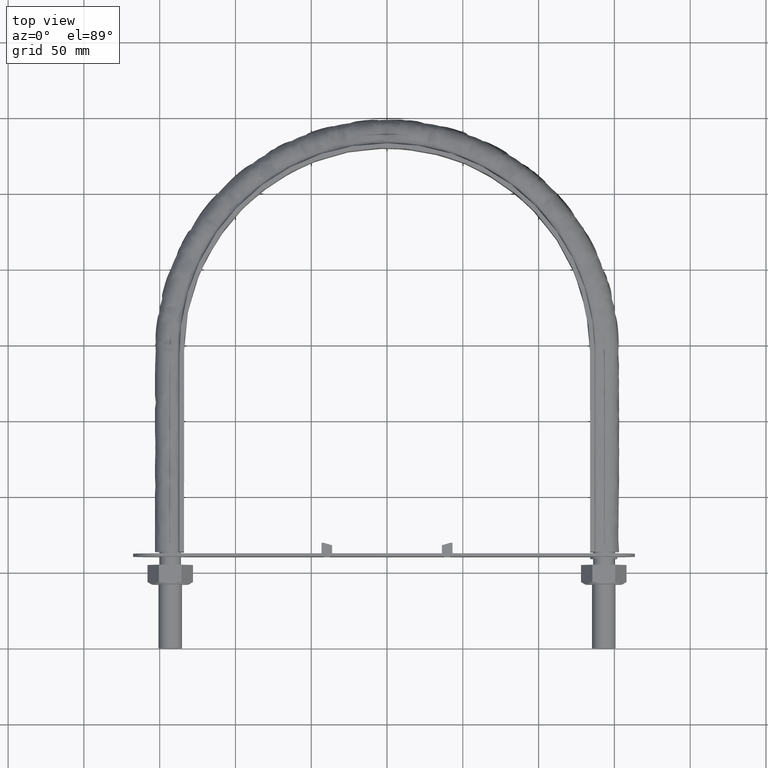
[diagram: clean part render]
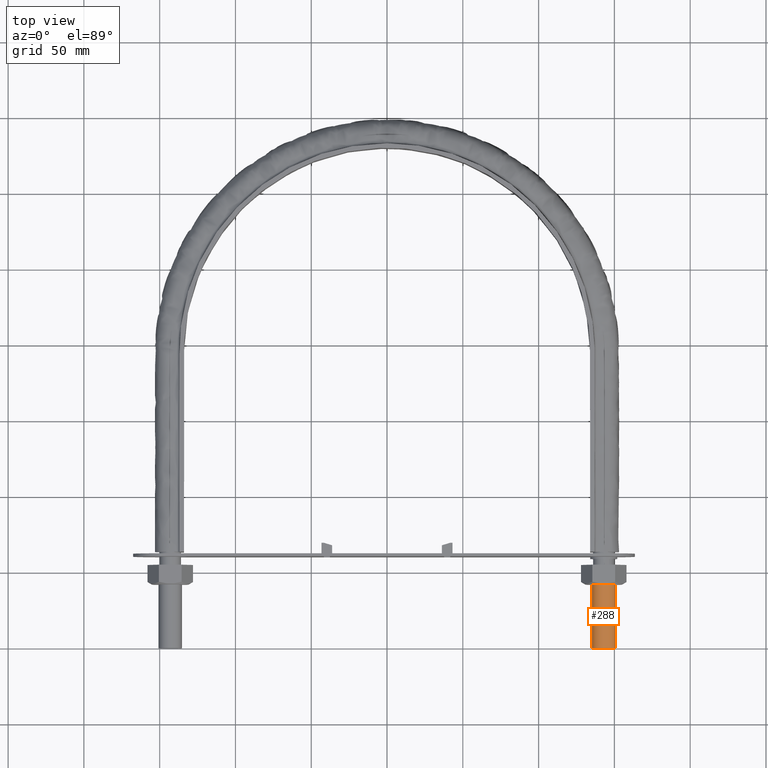
[diagram: same view with one face highlighted and labeled with its STEP entity id]
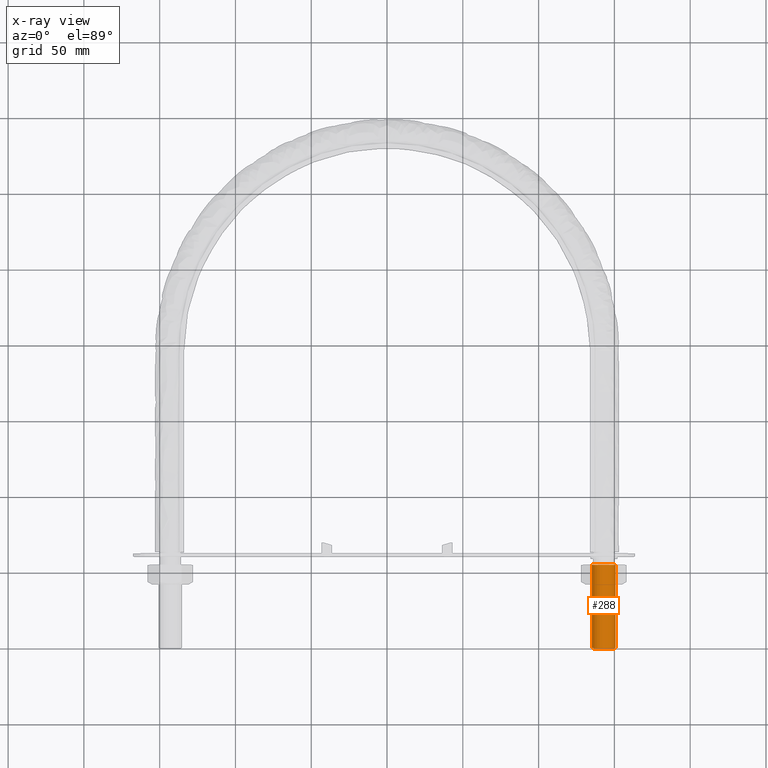
[diagram: x-ray of the same camera — body ghosted, the highlighted face saturated]
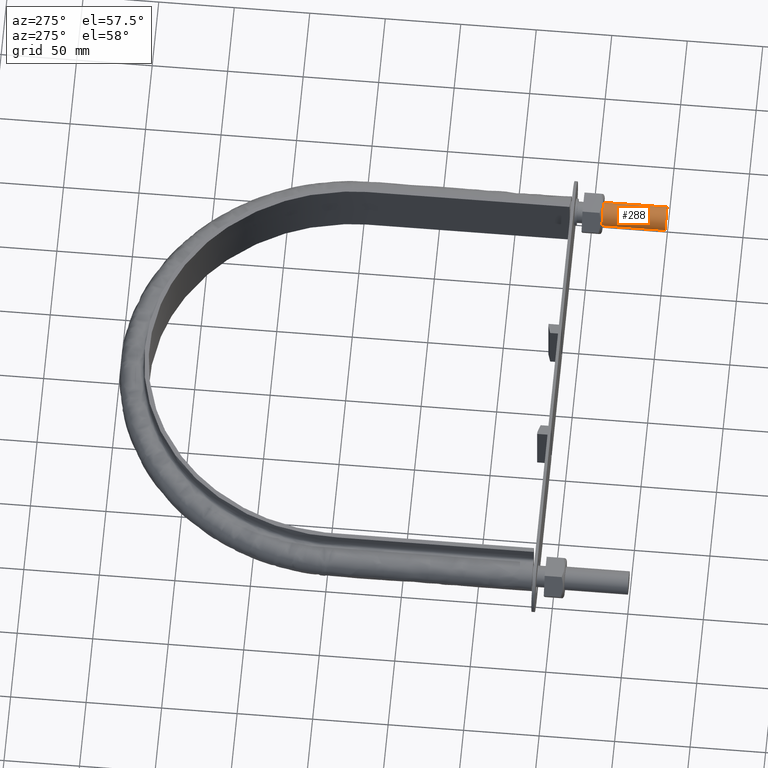
[diagram: same view with one face highlighted and labeled with its STEP entity id]
A machine part, top view. The second image highlights one B-rep face of the part: STEP entity #288.
The next image is the same camera in x-ray: the body ghosted, the highlighted face saturated — about 0% of this face is hidden behind the body in this view.
A second angle (auxiliary view) of the same face is appended — the face is thin or edge-on in the first view.
In plain terms, the highlighted cylindrical surface (bore or boss wall) has radius 7.75 mm, axis along (0, 1, -0).
Its self-contained STEP definition (entity closure, byte-faithful):
#288 = ADVANCED_FACE( '', ( #413, #414 ), #415, .T. );
#413 = FACE_OUTER_BOUND( '', #1554, .T. );
#414 = FACE_OUTER_BOUND( '', #1555, .T. );
#415 = CYLINDRICAL_SURFACE( '', #1556, 7.75000000000001 );
#1554 = EDGE_LOOP( '', ( #2069 ) );
#1555 = EDGE_LOOP( '', ( #2070 ) );
#1556 = AXIS2_PLACEMENT_3D( '', #2071, #2072, #2073 );
#2069 = ORIENTED_EDGE( '', *, *, #2641, .T. );
#2070 = ORIENTED_EDGE( '', *, *, #2638, .F. );
#2071 = CARTESIAN_POINT( '', ( 143.000000000000, 55.0000000000000, -1.68383373650577E-014 ) );
#2072 = DIRECTION( '', ( 2.44921270764475E-016, 1.00000000000000, -3.06151588455594E-016 ) );
#2073 = DIRECTION( '', ( 1.00000000000000, -2.44921270764476E-016, -5.47382212626882E-048 ) );
#2638 = EDGE_CURVE( '', #2862, #2862, #2863, .T. );
#2641 = EDGE_CURVE( '', #2868, #2868, #2869, .T. );
#2862 = VERTEX_POINT( '', #3676 );
#2863 = CIRCLE( '', #3677, 7.75000000000001 );
#2868 = VERTEX_POINT( '', #3682 );
#2869 = CIRCLE( '', #3683, 7.75000000000001 );
#3676 = CARTESIAN_POINT( '', ( 150.750000000000, -1.94100107080847E-014, 0.000000000000000 ) );
#3677 = AXIS2_PLACEMENT_3D( '', #4204, #4205, #4206 );
#3682 = CARTESIAN_POINT( '', ( 150.750000000000, 55.0000000000000, -1.68383373650577E-014 ) );
#3683 = AXIS2_PLACEMENT_3D( '', #4213, #4214, #4215 );
#4204 = CARTESIAN_POINT( '', ( 143.000000000000, -1.75118708596600E-014, -6.41805644305019E-046 ) );
#4205 = DIRECTION( '', ( -2.44921270764475E-016, -1.00000000000000, 3.06151588455594E-016 ) );
#4206 = DIRECTION( '', ( 1.00000000000000, -2.44921270764476E-016, 8.28136315232281E-047 ) );
#4213 = CARTESIAN_POINT( '', ( 143.000000000000, 55.0000000000000, -1.68383373650577E-014 ) );
#4214 = DIRECTION( '', ( -2.44921270764475E-016, -1.00000000000000, 3.06151588455594E-016 ) );
#4215 = DIRECTION( '', ( 1.00000000000000, -2.44921270764476E-016, 8.28136315232281E-047 ) );